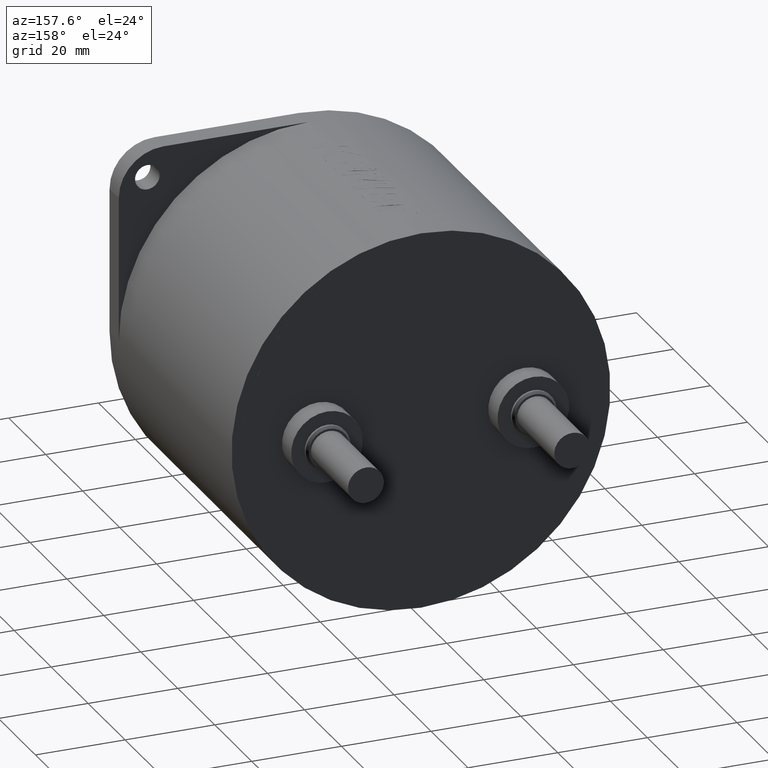
[diagram: clean part render]
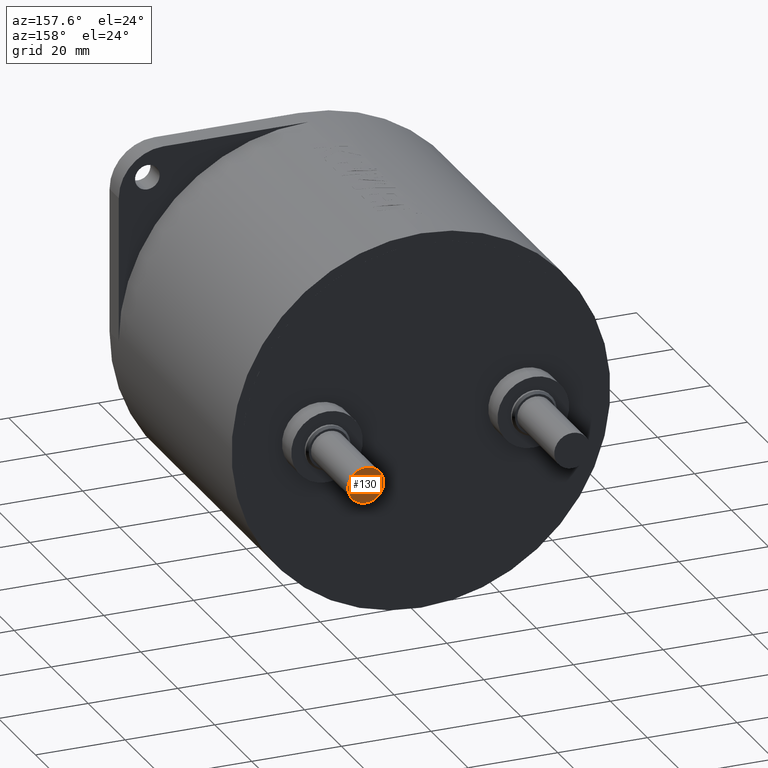
[diagram: same view with one face highlighted and labeled with its STEP entity id]
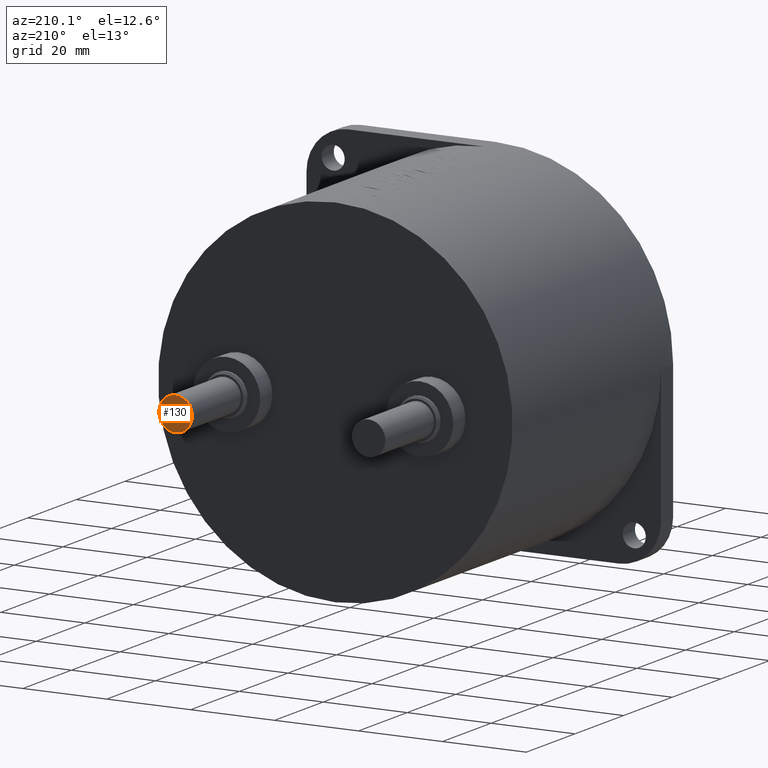
[diagram: same view with one face highlighted and labeled with its STEP entity id]
A machine part, auxiliary view. The second image highlights one B-rep face of the part: STEP entity #130.
A second angle (auxiliary view) of the same face is appended — the face is thin or edge-on in the first view.
In plain terms, the highlighted planar face has unit normal (0, 1, 0).
Its self-contained STEP definition (entity closure, byte-faithful):
#130 = ADVANCED_FACE ( 'NONE', ( #3206 ), #4061, .T. ) ;
#251 = CARTESIAN_POINT ( 'NONE',  ( 23.00000000000000000, 92.00000000000001400, 0.0000000000000000000 ) ) ;
#302 = CARTESIAN_POINT ( 'NONE',  ( 23.00000000000000000, 92.00000000000001400, 0.0000000000000000000 ) ) ;
#406 = CIRCLE ( 'NONE', #2005, 3.999999999999999100 ) ;
#448 = CARTESIAN_POINT ( 'NONE',  ( 23.00000000000000000, 92.00000000000001400, 3.999999999999999100 ) ) ;
#547 = DIRECTION ( 'NONE',  ( 0.0000000000000000000, 0.0000000000000000000, 1.000000000000000000 ) ) ;
#633 = DIRECTION ( 'NONE',  ( 0.0000000000000000000, 0.0000000000000000000, 1.000000000000000000 ) ) ;
#675 = EDGE_LOOP ( 'NONE', ( #1870, #2148 ) ) ;
#1321 = EDGE_CURVE ( 'NONE', #1694, #3568, #3113, .T. ) ;
#1590 = CARTESIAN_POINT ( 'NONE',  ( 23.00000000000000000, 92.00000000000001400, 0.0000000000000000000 ) ) ;
#1694 = VERTEX_POINT ( 'NONE', #448 ) ;
#1870 = ORIENTED_EDGE ( 'NONE', *, *, #2687, .F. ) ;
#2005 = AXIS2_PLACEMENT_3D ( 'NONE', #1590, #3759, #633 ) ;
#2128 = DIRECTION ( 'NONE',  ( 0.0000000000000000000, 1.000000000000000000, 0.0000000000000000000 ) ) ;
#2130 = AXIS2_PLACEMENT_3D ( 'NONE', #302, #2857, #3748 ) ;
#2148 = ORIENTED_EDGE ( 'NONE', *, *, #1321, .F. ) ;
#2687 = EDGE_CURVE ( 'NONE', #3568, #1694, #406, .T. ) ;
#2857 = DIRECTION ( 'NONE',  ( -0.0000000000000000000, -1.000000000000000000, -0.0000000000000000000 ) ) ;
#3113 = CIRCLE ( 'NONE', #2130, 3.999999999999999100 ) ;
#3206 = FACE_OUTER_BOUND ( 'NONE', #675, .T. ) ;
#3313 = AXIS2_PLACEMENT_3D ( 'NONE', #251, #2128, #547 ) ;
#3529 = CARTESIAN_POINT ( 'NONE',  ( 23.00000000000000000, 92.00000000000001400, -3.999999999999999100 ) ) ;
#3568 = VERTEX_POINT ( 'NONE', #3529 ) ;
#3748 = DIRECTION ( 'NONE',  ( 0.0000000000000000000, 0.0000000000000000000, 1.000000000000000000 ) ) ;
#3759 = DIRECTION ( 'NONE',  ( -0.0000000000000000000, -1.000000000000000000, -0.0000000000000000000 ) ) ;
#4061 = PLANE ( 'NONE',  #3313 ) ;